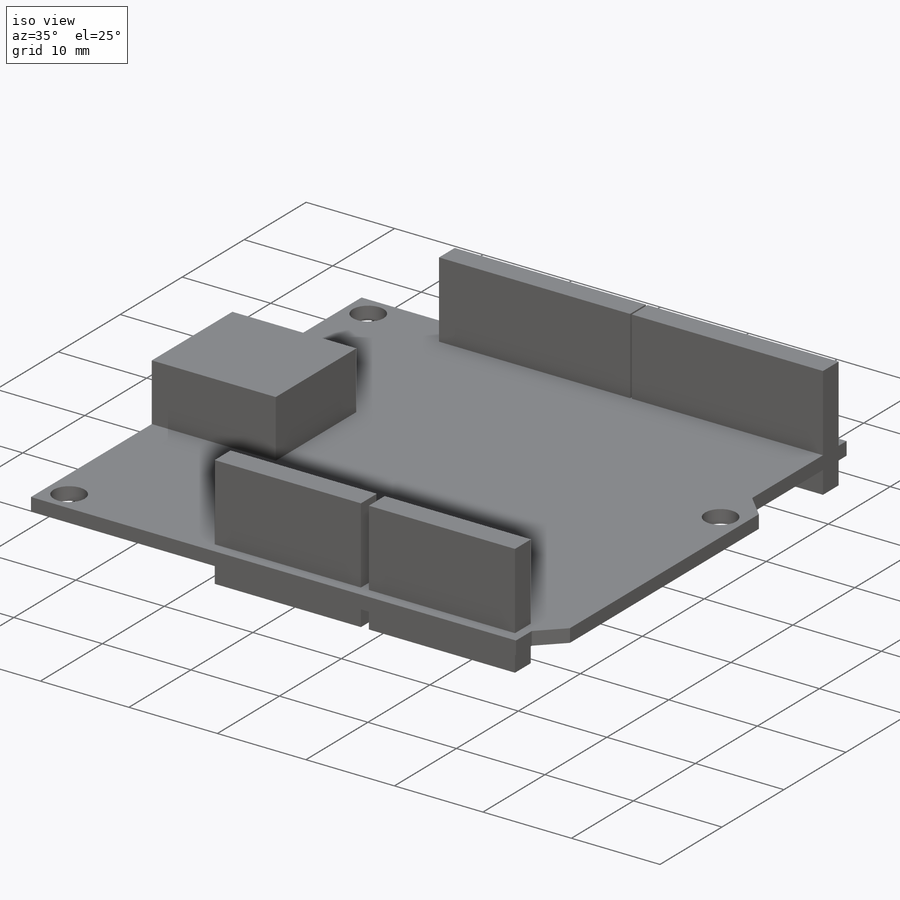
[diagram: iso view]
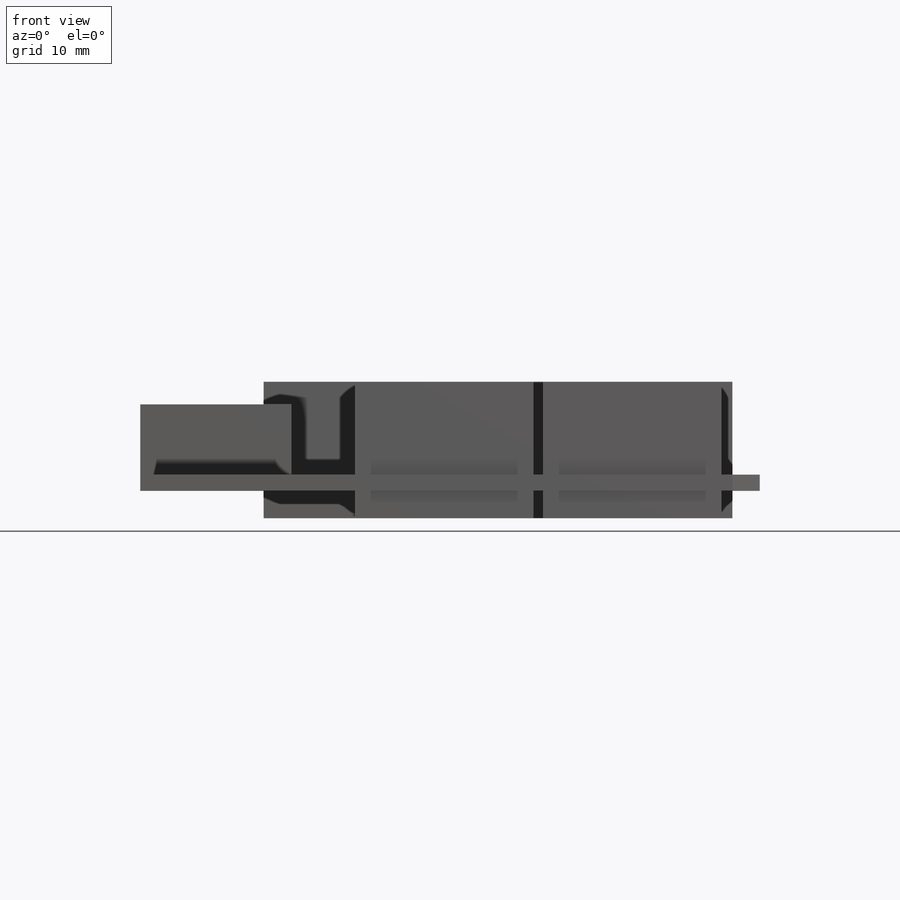
[diagram: front view]
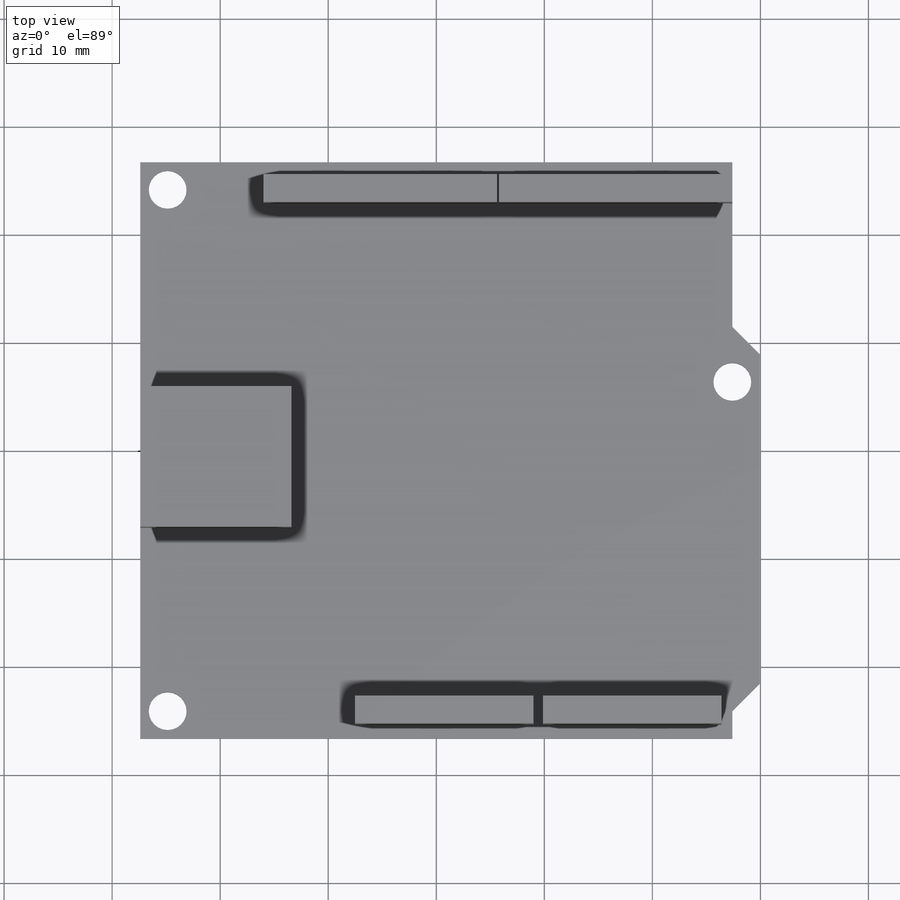
[diagram: top view]
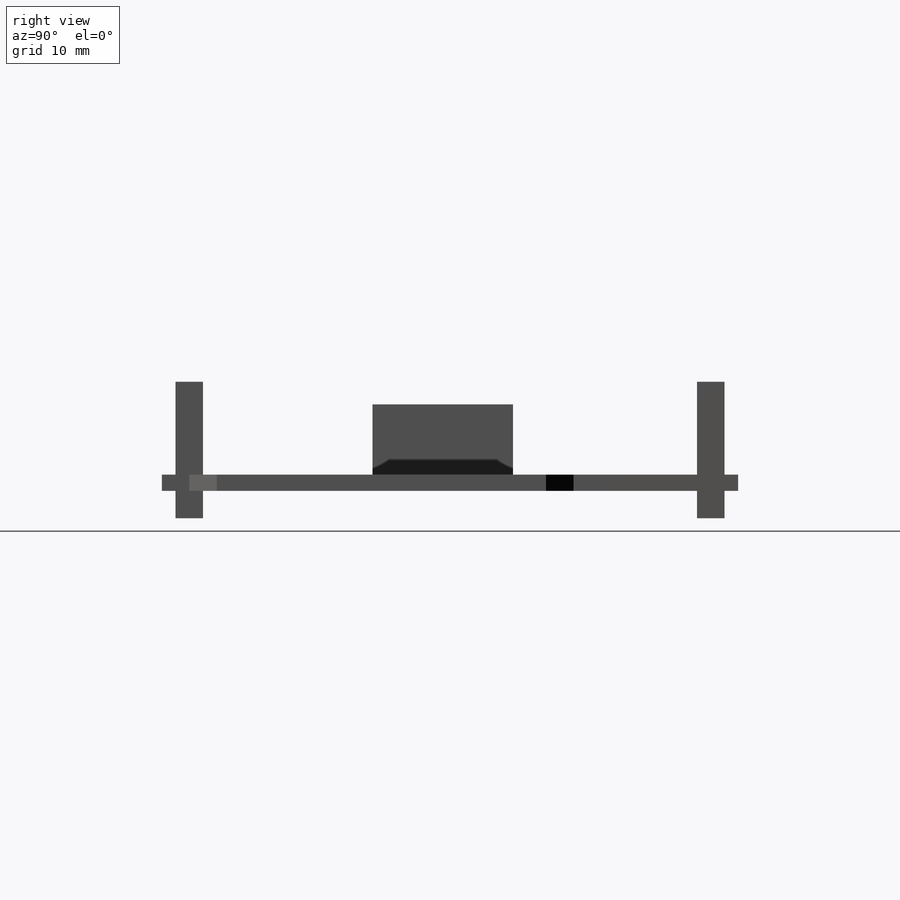
[diagram: right view]
SOLIDWORKS PART (.sldprt)
format: sldprt  version: not decoded by parser v0  size: 218,112 bytes
history: native  units: mm
features: sketch x4, extrude x3, material x1, cut_extrude x1 (+12 scaffold rows collapsed)
feature tree (21):
  scaffold x12  (default folders/planes/origin — collapsed)
  material  "Material <not specified>"
  sketch  "Sketch1"  dims[D1=54.8mm D2=53.34mm D3=2.54mm D4=2.54mm D5=35.56mm]
  extrude  "Boss-Extrude1"  Depth=1.5mm
  sketch  "Sketch2"  dims[D1=3.5mm D2=2.54mm D3=5.08mm]
  cut_extrude  "Cut-Extrude1"  [1 undecoded]
  sketch  "Sketch3"  dims[D1=14.0mm D2=13.0mm D3=19.5mm]
  extrude  "Boss-Extrude2"  Depth=6.5mm
  sketch  "Sketch4"  dims[D1=2.54mm D2=21.59mm D3=1.27mm D4=0.2mm D5=1.27mm D6=16.51mm D7=1.0mm D8=0.9mm D9=0.001mm]
  extrude  "Boss-Extrude3"  Depth=8.6mm
decode coverage: 7 of 8 modeling features carry decoded parameters
note: 1 parameter value undecoded
note: suppression state not decoded; provenance and decode notes live in map.json
